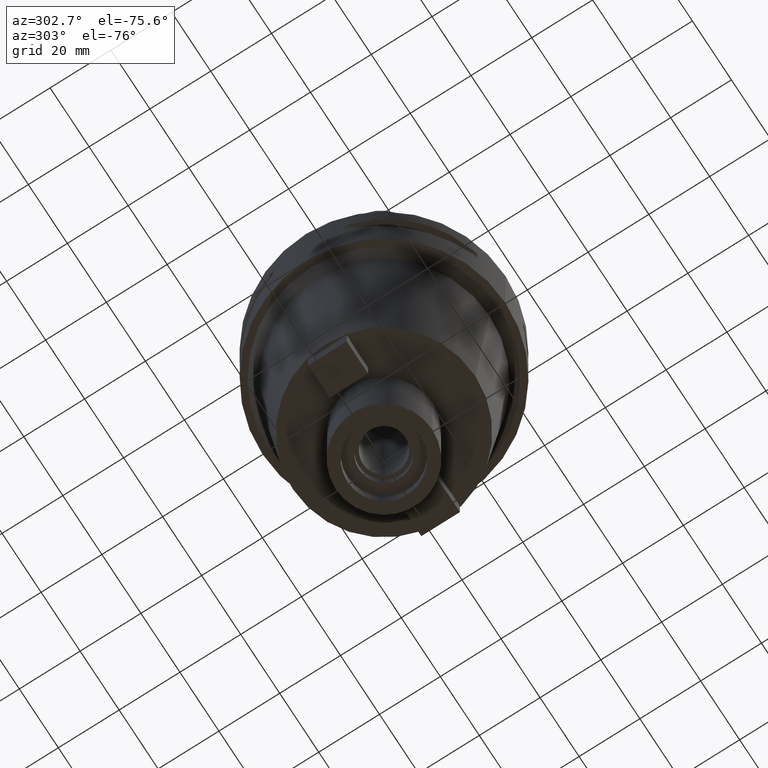
[diagram: clean part render]
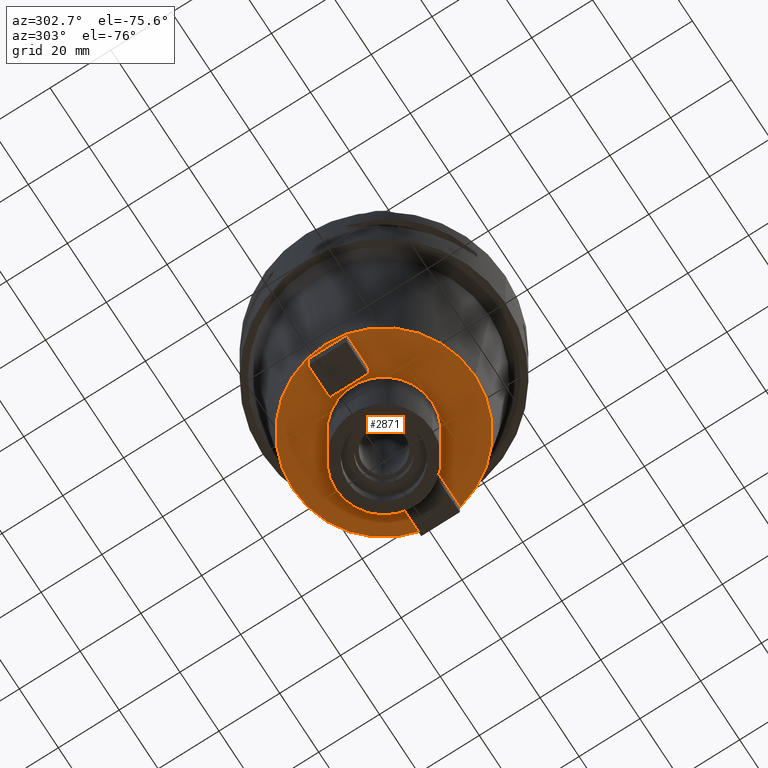
[diagram: same view with one face highlighted and labeled with its STEP entity id]
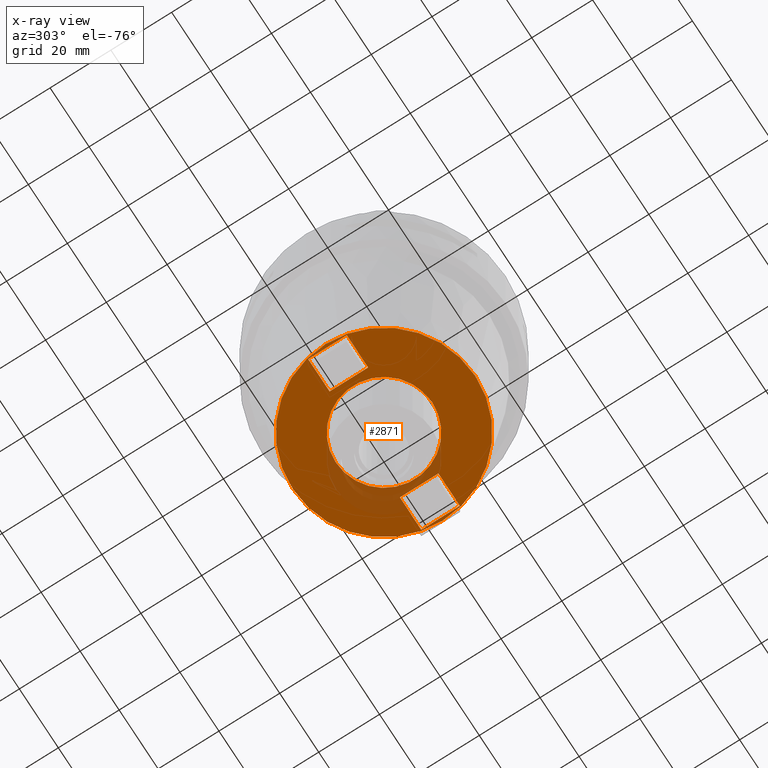
[diagram: x-ray of the same camera — body ghosted, the highlighted face saturated]
A machine part, auxiliary view. The second image highlights one B-rep face of the part: STEP entity #2871.
The next image is the same camera in x-ray: the body ghosted, the highlighted face saturated — about 12% of this face is hidden behind the body in this view.
In plain terms, the highlighted planar face has unit normal (0, 0, -1).
Its self-contained STEP definition (entity closure, byte-faithful):
#580=CARTESIAN_POINT('',(0.E0,0.E0,-9.E1));
#581=DIRECTION('',(0.E0,0.E0,1.E0));
#582=DIRECTION('',(0.E0,-1.E0,0.E0));
#583=AXIS2_PLACEMENT_3D('',#580,#581,#582);
#588=CARTESIAN_POINT('',(0.E0,0.E0,-9.E1));
#589=DIRECTION('',(0.E0,0.E0,1.E0));
#590=DIRECTION('',(0.E0,1.E0,0.E0));
#591=AXIS2_PLACEMENT_3D('',#588,#589,#590);
#596=CARTESIAN_POINT('',(0.E0,1.298125607096E-14,-9.E1));
#597=DIRECTION('',(0.E0,0.E0,-1.E0));
#598=DIRECTION('',(0.E0,-1.E0,0.E0));
#599=AXIS2_PLACEMENT_3D('',#596,#597,#598);
#604=CARTESIAN_POINT('',(0.E0,1.298125607096E-14,-9.E1));
#605=DIRECTION('',(0.E0,0.E0,-1.E0));
#606=DIRECTION('',(0.E0,1.E0,0.E0));
#607=AXIS2_PLACEMENT_3D('',#604,#605,#606);
#612=DIRECTION('',(1.E0,0.E0,0.E0));
#613=VECTOR('',#612,1.1E1);
#614=CARTESIAN_POINT('',(1.8E1,6.35E0,-9.E1));
#615=LINE('',#614,#613);
#619=DIRECTION('',(0.E0,-1.E0,0.E0));
#620=VECTOR('',#619,1.27E1);
#621=CARTESIAN_POINT('',(2.9E1,6.35E0,-9.E1));
#622=LINE('',#621,#620);
#626=DIRECTION('',(-1.E0,0.E0,0.E0));
#627=VECTOR('',#626,1.1E1);
#628=CARTESIAN_POINT('',(-1.8E1,-6.35E0,-9.E1));
#629=LINE('',#628,#627);
#633=DIRECTION('',(0.E0,1.E0,0.E0));
#634=VECTOR('',#633,1.27E1);
#635=CARTESIAN_POINT('',(-2.9E1,-6.35E0,-9.E1));
#636=LINE('',#635,#634);
#1280=DIRECTION('',(1.E0,0.E0,0.E0));
#1281=VECTOR('',#1280,1.1E1);
#1282=CARTESIAN_POINT('',(1.8E1,-6.35E0,-9.E1));
#1283=LINE('',#1282,#1281);
#1294=DIRECTION('',(0.E0,-1.E0,0.E0));
#1295=VECTOR('',#1294,1.27E1);
#1296=CARTESIAN_POINT('',(1.8E1,6.35E0,-9.E1));
#1297=LINE('',#1296,#1295);
#1350=DIRECTION('',(-1.E0,0.E0,0.E0));
#1351=VECTOR('',#1350,1.1E1);
#1352=CARTESIAN_POINT('',(-1.8E1,6.35E0,-9.E1));
#1353=LINE('',#1352,#1351);
#1364=DIRECTION('',(0.E0,1.E0,0.E0));
#1365=VECTOR('',#1364,1.27E1);
#1366=CARTESIAN_POINT('',(-1.8E1,-6.35E0,-9.E1));
#1367=LINE('',#1366,#1365);
#1794=CARTESIAN_POINT('',(0.E0,3.E1,-9.E1));
#1795=VERTEX_POINT('',#1794);
#1796=CARTESIAN_POINT('',(0.E0,-3.E1,-9.E1));
#1797=VERTEX_POINT('',#1796);
#1798=CARTESIAN_POINT('',(0.E0,-1.5875E1,-9.E1));
#1799=CARTESIAN_POINT('',(0.E0,1.5875E1,-9.E1));
#1800=VERTEX_POINT('',#1798);
#1801=VERTEX_POINT('',#1799);
#1802=CARTESIAN_POINT('',(1.8E1,-6.35E0,-9.E1));
#1803=CARTESIAN_POINT('',(2.9E1,-6.35E0,-9.E1));
#1804=VERTEX_POINT('',#1802);
#1805=VERTEX_POINT('',#1803);
#1806=CARTESIAN_POINT('',(1.8E1,6.35E0,-9.E1));
#1807=VERTEX_POINT('',#1806);
#1808=CARTESIAN_POINT('',(2.9E1,6.35E0,-9.E1));
#1809=VERTEX_POINT('',#1808);
#1810=CARTESIAN_POINT('',(-1.8E1,6.35E0,-9.E1));
#1811=CARTESIAN_POINT('',(-2.9E1,6.35E0,-9.E1));
#1812=VERTEX_POINT('',#1810);
#1813=VERTEX_POINT('',#1811);
#1814=CARTESIAN_POINT('',(-1.8E1,-6.35E0,-9.E1));
#1815=VERTEX_POINT('',#1814);
#1816=CARTESIAN_POINT('',(-2.9E1,-6.35E0,-9.E1));
#1817=VERTEX_POINT('',#1816);
#2836=CARTESIAN_POINT('',(0.E0,0.E0,-9.E1));
#2837=DIRECTION('',(0.E0,0.E0,-1.E0));
#2838=DIRECTION('',(0.E0,-1.E0,0.E0));
#2839=AXIS2_PLACEMENT_3D('',#2836,#2837,#2838);
#2840=PLANE('',#2839);
#2841=ORIENTED_EDGE('',*,*,#2815,.T.);
#2842=ORIENTED_EDGE('',*,*,#2831,.T.);
#2843=EDGE_LOOP('',(#2841,#2842));
#2844=FACE_OUTER_BOUND('',#2843,.F.);
#2846=ORIENTED_EDGE('',*,*,#2845,.T.);
#2848=ORIENTED_EDGE('',*,*,#2847,.T.);
#2849=EDGE_LOOP('',(#2846,#2848));
#2850=FACE_BOUND('',#2849,.F.);
#2852=ORIENTED_EDGE('',*,*,#2851,.F.);
#2854=ORIENTED_EDGE('',*,*,#2853,.F.);
#2856=ORIENTED_EDGE('',*,*,#2855,.T.);
#2858=ORIENTED_EDGE('',*,*,#2857,.T.);
#2859=EDGE_LOOP('',(#2852,#2854,#2856,#2858));
#2860=FACE_BOUND('',#2859,.F.);
#2862=ORIENTED_EDGE('',*,*,#2861,.F.);
#2864=ORIENTED_EDGE('',*,*,#2863,.F.);
#2866=ORIENTED_EDGE('',*,*,#2865,.T.);
#2868=ORIENTED_EDGE('',*,*,#2867,.T.);
#2869=EDGE_LOOP('',(#2862,#2864,#2866,#2868));
#2870=FACE_BOUND('',#2869,.F.);
#584=CIRCLE('',#583,3.E1);
#592=CIRCLE('',#591,3.E1);
#600=CIRCLE('',#599,1.5875E1);
#608=CIRCLE('',#607,1.5875E1);
#2815=EDGE_CURVE('',#1797,#1795,#584,.T.);
#2831=EDGE_CURVE('',#1795,#1797,#592,.T.);
#2845=EDGE_CURVE('',#1800,#1801,#600,.T.);
#2847=EDGE_CURVE('',#1801,#1800,#608,.T.);
#2851=EDGE_CURVE('',#1804,#1805,#1283,.T.);
#2853=EDGE_CURVE('',#1807,#1804,#1297,.T.);
#2855=EDGE_CURVE('',#1807,#1809,#615,.T.);
#2857=EDGE_CURVE('',#1809,#1805,#622,.T.);
#2861=EDGE_CURVE('',#1812,#1813,#1353,.T.);
#2863=EDGE_CURVE('',#1815,#1812,#1367,.T.);
#2865=EDGE_CURVE('',#1815,#1817,#629,.T.);
#2867=EDGE_CURVE('',#1817,#1813,#636,.T.);
#2871=ADVANCED_FACE('',(#2844,#2850,#2860,#2870),#2840,.T.);